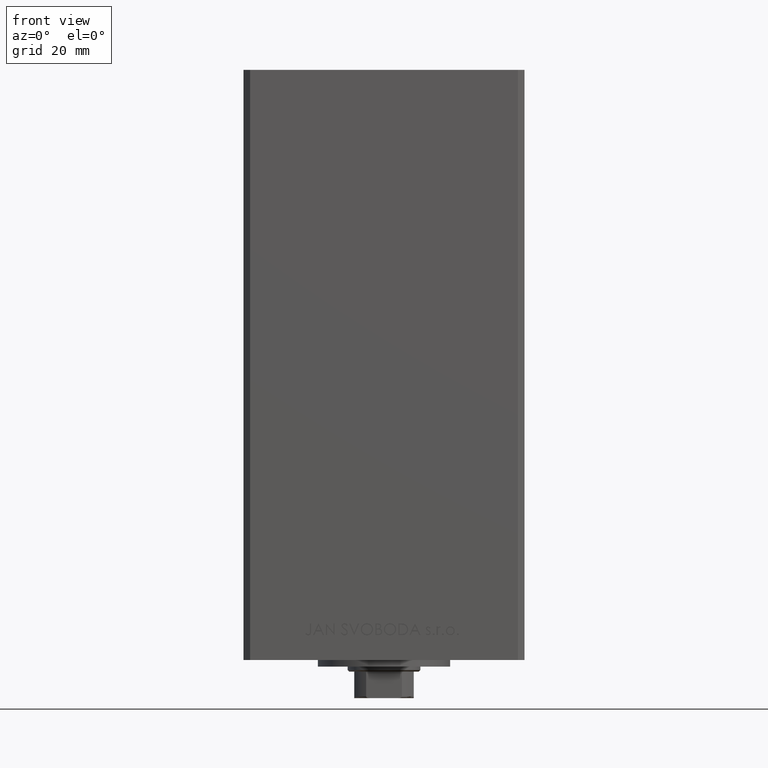
[diagram: clean part render]
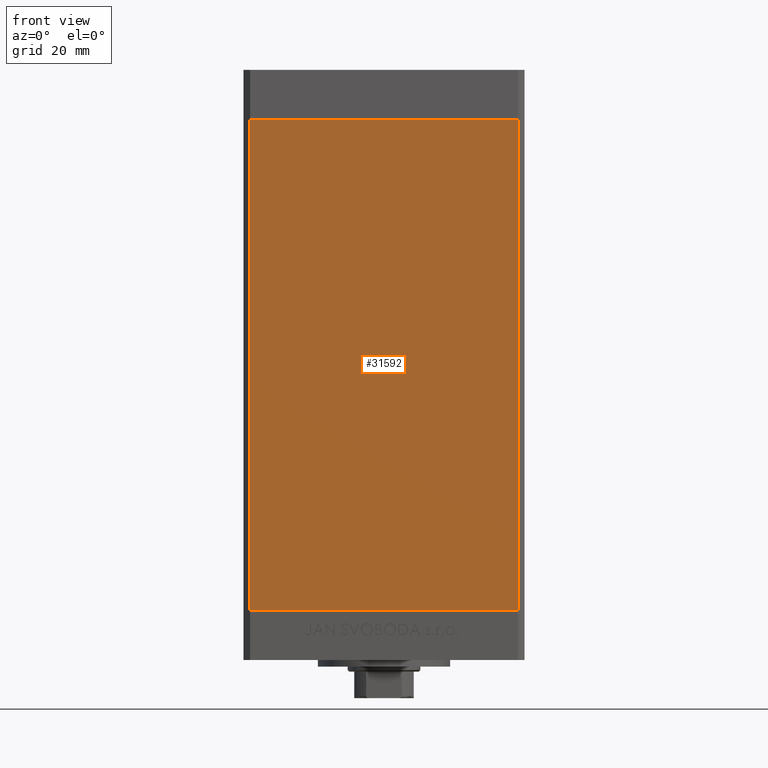
[diagram: same view with one face highlighted and labeled with its STEP entity id]
A machine part, front view. The second image highlights one B-rep face of the part: STEP entity #31592.
In plain terms, the highlighted planar face has unit normal (0, 1, 0).
Its self-contained STEP definition (entity closure, byte-faithful):
#1542 = DIRECTION ( 'NONE',  ( 0.000000000000000000, 1.000000000000000000, 0.000000000000000000 ) ) ;
#2144 = AXIS2_PLACEMENT_3D ( 'NONE', #28733, #1542, #43352 ) ;
#2169 = VERTEX_POINT ( 'NONE', #45839 ) ;
#2545 = VECTOR ( 'NONE', #10436, 1000.000000000000000 ) ;
#3210 = DIRECTION ( 'NONE',  ( 1.000000000000000000, 0.000000000000000000, 0.000000000000000000 ) ) ;
#3251 = EDGE_CURVE ( 'NONE', #46728, #2169, #28263, .T. ) ;
#4445 = CARTESIAN_POINT ( 'NONE',  ( 40.49999999999998579, -37.50000000000000711, 148.5000000000000000 ) ) ;
#4818 = CARTESIAN_POINT ( 'NONE',  ( -40.49999999999998579, -37.50000000000000711, 148.5000000000000000 ) ) ;
#8091 = ORIENTED_EDGE ( 'NONE', *, *, #15765, .T. ) ;
#9014 = LINE ( 'NONE', #4818, #19156 ) ;
#9812 = VERTEX_POINT ( 'NONE', #47927 ) ;
#9904 = LINE ( 'NONE', #22001, #41669 ) ;
#10436 = DIRECTION ( 'NONE',  ( -0.000000000000000000, -0.000000000000000000, -1.000000000000000000 ) ) ;
#11817 = ORIENTED_EDGE ( 'NONE', *, *, #36490, .F. ) ;
#13645 = FACE_OUTER_BOUND ( 'NONE', #44256, .T. ) ;
#13937 = ORIENTED_EDGE ( 'NONE', *, *, #42894, .T. ) ;
#14900 = DIRECTION ( 'NONE',  ( 1.000000000000000000, 0.000000000000000000, 0.000000000000000000 ) ) ;
#15765 = EDGE_CURVE ( 'NONE', #9812, #44505, #9014, .T. ) ;
#17406 = LINE ( 'NONE', #32991, #45435 ) ;
#19156 = VECTOR ( 'NONE', #42677, 1000.000000000000000 ) ;
#22001 = CARTESIAN_POINT ( 'NONE',  ( -40.49999999999998579, -37.50000000000000711, 0.000000000000000000 ) ) ;
#24040 = PLANE ( 'NONE',  #2144 ) ;
#28263 = LINE ( 'NONE', #32472, #2545 ) ;
#28733 = CARTESIAN_POINT ( 'NONE',  ( -40.49999999999998579, -37.50000000000000711, 148.5000000000000000 ) ) ;
#31199 = CARTESIAN_POINT ( 'NONE',  ( -40.49999999999998579, -37.50000000000000711, 0.000000000000000000 ) ) ;
#31592 = ADVANCED_FACE ( 'NONE', ( #13645 ), #24040, .F. ) ;
#32472 = CARTESIAN_POINT ( 'NONE',  ( 40.49999999999998579, -37.50000000000000711, 148.5000000000000000 ) ) ;
#32991 = CARTESIAN_POINT ( 'NONE',  ( -40.49999999999998579, -37.50000000000000711, 148.5000000000000000 ) ) ;
#34950 = ORIENTED_EDGE ( 'NONE', *, *, #3251, .F. ) ;
#36490 = EDGE_CURVE ( 'NONE', #9812, #46728, #17406, .T. ) ;
#41669 = VECTOR ( 'NONE', #3210, 1000.000000000000000 ) ;
#42677 = DIRECTION ( 'NONE',  ( -0.000000000000000000, -0.000000000000000000, -1.000000000000000000 ) ) ;
#42894 = EDGE_CURVE ( 'NONE', #44505, #2169, #9904, .T. ) ;
#43352 = DIRECTION ( 'NONE',  ( 0.000000000000000000, -0.000000000000000000, 1.000000000000000000 ) ) ;
#44256 = EDGE_LOOP ( 'NONE', ( #13937, #34950, #11817, #8091 ) ) ;
#44505 = VERTEX_POINT ( 'NONE', #31199 ) ;
#45435 = VECTOR ( 'NONE', #14900, 1000.000000000000000 ) ;
#45839 = CARTESIAN_POINT ( 'NONE',  ( 40.49999999999998579, -37.50000000000000711, 0.000000000000000000 ) ) ;
#46728 = VERTEX_POINT ( 'NONE', #4445 ) ;
#47927 = CARTESIAN_POINT ( 'NONE',  ( -40.49999999999998579, -37.50000000000000711, 148.5000000000000000 ) ) ;